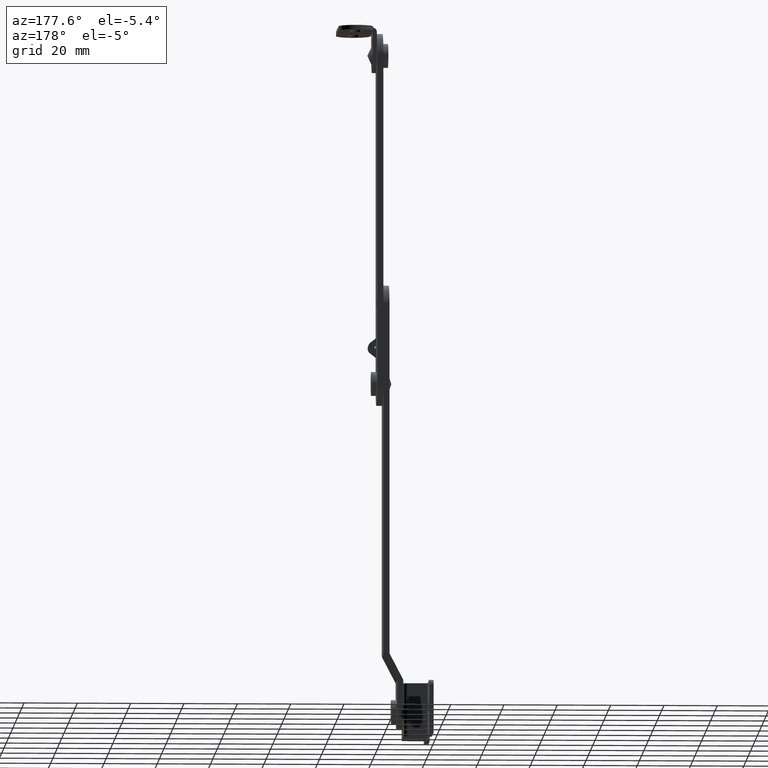
[diagram: clean part render]
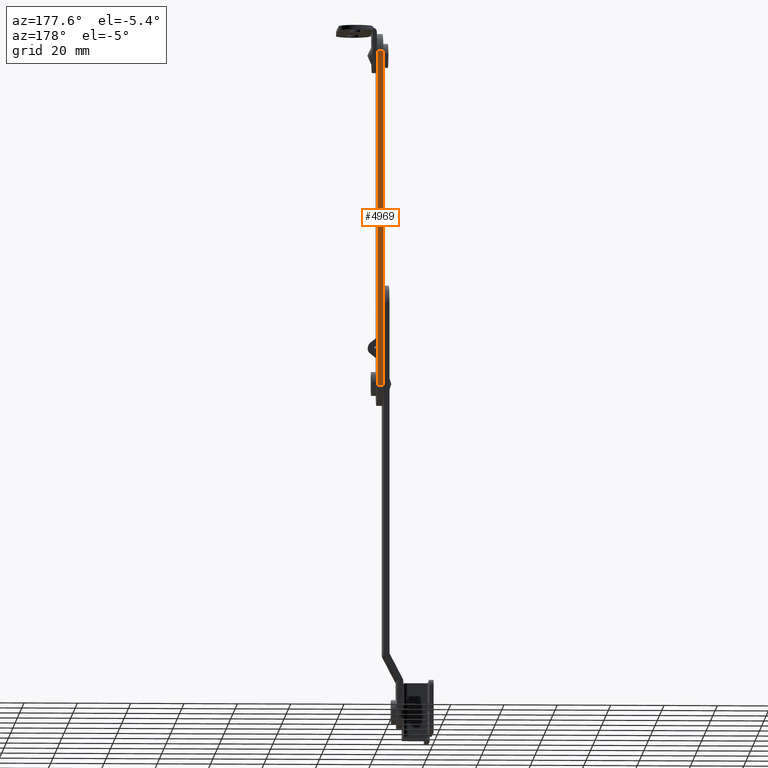
[diagram: same view with one face highlighted and labeled with its STEP entity id]
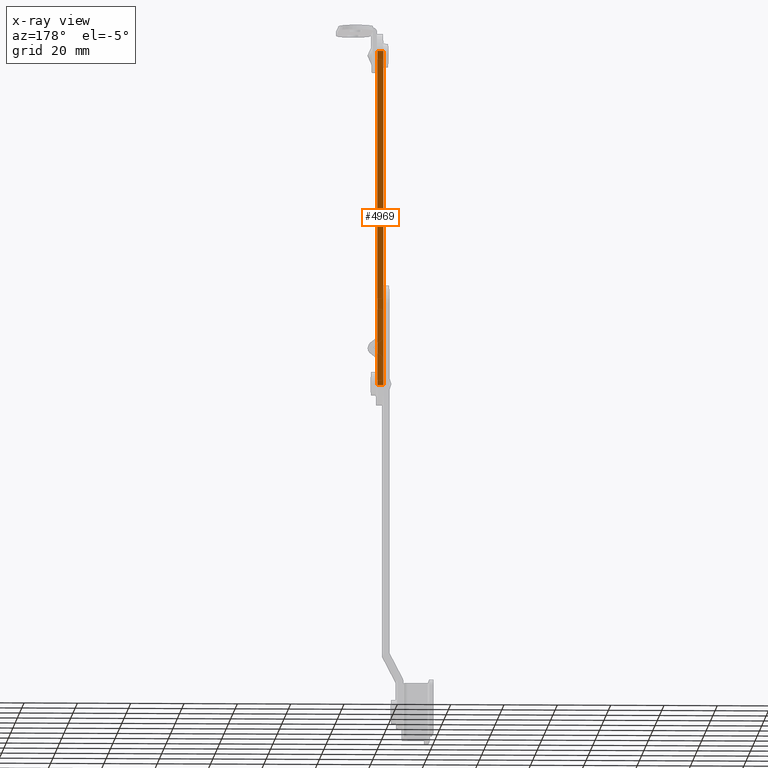
[diagram: x-ray of the same camera — body ghosted, the highlighted face saturated]
A machine part, auxiliary view. The second image highlights one B-rep face of the part: STEP entity #4969.
The next image is the same camera in x-ray: the body ghosted, the highlighted face saturated — about 0% of this face is hidden behind the body in this view.
In plain terms, the highlighted face is a freeform B-spline surface patch.
Its self-contained STEP definition (entity closure, byte-faithful):
#4787=CARTESIAN_POINT('',(20.300025000000051,7.100000000000140,-1.149999999999854));
#4788=VERTEX_POINT('',#4787);
#4836=CARTESIAN_POINT('',(18.000005999999850,7.100000000000140,-1.149999999999854));
#4837=VERTEX_POINT('',#4836);
#4850=CARTESIAN_POINT('',(18.000005999999850,7.100000000000140,-1.149999999999854));
#4851=CARTESIAN_POINT('',(20.300025000000051,7.100000000000140,-1.149999999999854));
#4852=QUASI_UNIFORM_CURVE('',1,(#4850,#4851),.UNSPECIFIED.,.F.,.U.);
#4853=EDGE_CURVE('',#4837,#4788,#4852,.T.);
#4876=CARTESIAN_POINT('',(18.000005999999850,7.100000000000210,124.650000000000010));
#4877=VERTEX_POINT('',#4876);
#4927=CARTESIAN_POINT('',(20.300025000000051,7.100000000000210,124.650000000000010));
#4928=VERTEX_POINT('',#4927);
#4942=CARTESIAN_POINT('',(20.300025000000051,7.100000000000210,124.650000000000010));
#4943=CARTESIAN_POINT('',(18.000005999999850,7.100000000000210,124.650000000000010));
#4944=QUASI_UNIFORM_CURVE('',1,(#4942,#4943),.UNSPECIFIED.,.F.,.U.);
#4945=EDGE_CURVE('',#4928,#4877,#4944,.T.);
#4950=CARTESIAN_POINT('',(17.885119712048251,7.100000000000001,-7.433709756175047));
#4951=CARTESIAN_POINT('',(17.885119712048251,7.100000000000001,130.933713130394100));
#4952=CARTESIAN_POINT('',(20.414911884301048,7.100000000000001,-7.433709756175047));
#4953=CARTESIAN_POINT('',(20.414911884301048,7.100000000000001,130.933713130394100));
#4954=B_SPLINE_SURFACE_WITH_KNOTS('',1,1,((#4950,#4952),(#4951,#4953)),.UNSPECIFIED.,.F.,.F.,.U.,(2,2),(2,2),(0.0,138.367422886569190),(0.0,2.529792172252801),.UNSPECIFIED.);
#4955=ORIENTED_EDGE('',*,*,#4853,.F.);
#4956=CARTESIAN_POINT('',(18.000005999999850,7.100000000000140,-1.149999999999854));
#4957=CARTESIAN_POINT('',(18.000005999999850,7.100000000000210,124.650000000000010));
#4958=QUASI_UNIFORM_CURVE('',1,(#4956,#4957),.UNSPECIFIED.,.F.,.U.);
#4959=EDGE_CURVE('',#4837,#4877,#4958,.T.);
#4960=ORIENTED_EDGE('',*,*,#4959,.T.);
#4961=ORIENTED_EDGE('',*,*,#4945,.F.);
#4962=CARTESIAN_POINT('',(20.300025000000051,7.100000000000140,-1.149999999999854));
#4963=CARTESIAN_POINT('',(20.300025000000051,7.100000000000210,124.650000000000010));
#4964=QUASI_UNIFORM_CURVE('',1,(#4962,#4963),.UNSPECIFIED.,.F.,.U.);
#4965=EDGE_CURVE('',#4788,#4928,#4964,.T.);
#4966=ORIENTED_EDGE('',*,*,#4965,.F.);
#4967=EDGE_LOOP('',(#4955,#4960,#4961,#4966));
#4968=FACE_OUTER_BOUND('',#4967,.T.);
#4969=ADVANCED_FACE('',(#4968),#4954,.T.);